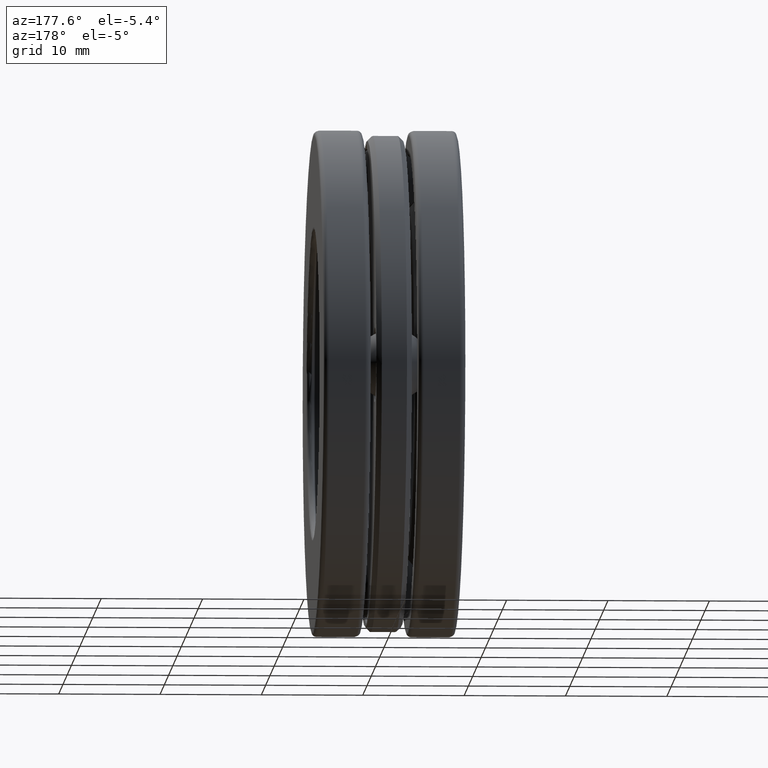
[diagram: clean part render]
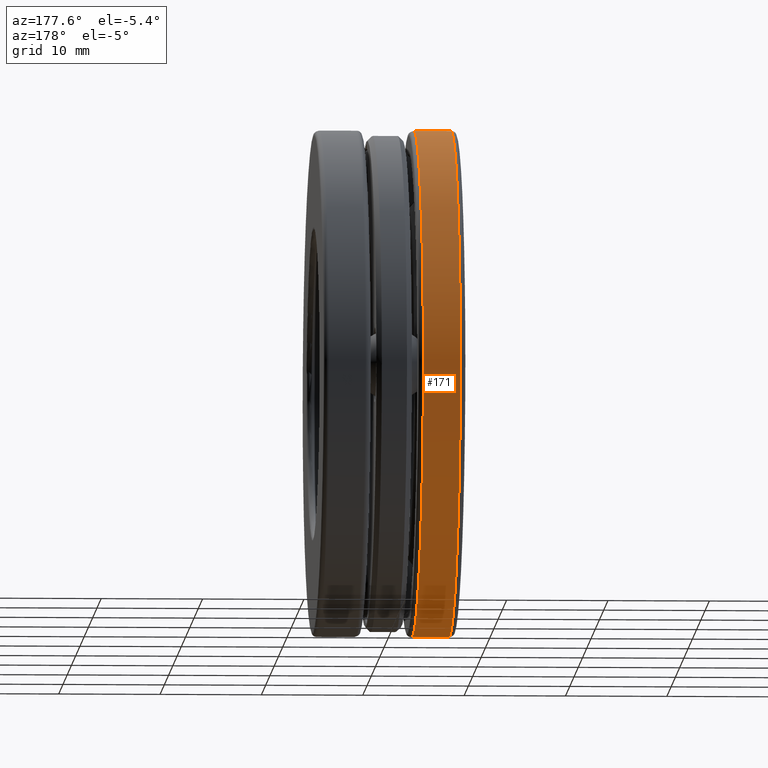
[diagram: same view with one face highlighted and labeled with its STEP entity id]
A machine part, auxiliary view. The second image highlights one B-rep face of the part: STEP entity #171.
In plain terms, the highlighted cylindrical surface (bore or boss wall) has radius 25.0063 mm, axis along (-1, -0, -0).
Its self-contained STEP definition (entity closure, byte-faithful):
#7 = FACE_OUTER_BOUND ( 'NONE', #177, .T. ) ;
#12 = DIRECTION ( 'NONE',  ( 0.0000000000000000000, 0.0000000000000000000, 1.000000000000000000 ) ) ;
#64 = CARTESIAN_POINT ( 'NONE',  ( -0.2555000000000000600, 0.0000000000000000000, 0.9845000000000001500 ) ) ;
#68 = VERTEX_POINT ( 'NONE', #816 ) ;
#124 = FACE_OUTER_BOUND ( 'NONE', #185, .T. ) ;
#171 = ADVANCED_FACE ( 'NONE', ( #7, #124 ), #690, .T. ) ;
#177 = EDGE_LOOP ( 'NONE', ( #769 ) ) ;
#178 = AXIS2_PLACEMENT_3D ( 'NONE', #350, #449, #243 ) ;
#185 = EDGE_LOOP ( 'NONE', ( #583 ) ) ;
#197 = AXIS2_PLACEMENT_3D ( 'NONE', #774, #413, #12 ) ;
#210 = AXIS2_PLACEMENT_3D ( 'NONE', #287, #775, #359 ) ;
#243 = DIRECTION ( 'NONE',  ( 0.0000000000000000000, 0.0000000000000000000, 1.000000000000000000 ) ) ;
#287 = CARTESIAN_POINT ( 'NONE',  ( -0.1118351699999999700, 0.0000000000000000000, 0.0000000000000000000 ) ) ;
#332 = VERTEX_POINT ( 'NONE', #64 ) ;
#350 = CARTESIAN_POINT ( 'NONE',  ( 0.0000000000000000000, 0.0000000000000000000, 0.0000000000000000000 ) ) ;
#359 = DIRECTION ( 'NONE',  ( 0.0000000000000000000, 0.0000000000000000000, 1.000000000000000000 ) ) ;
#407 = EDGE_CURVE ( 'NONE', #332, #332, #713, .T. ) ;
#413 = DIRECTION ( 'NONE',  ( -1.000000000000000000, -0.0000000000000000000, -0.0000000000000000000 ) ) ;
#449 = DIRECTION ( 'NONE',  ( -1.000000000000000000, -0.0000000000000000000, -0.0000000000000000000 ) ) ;
#491 = EDGE_CURVE ( 'NONE', #68, #68, #545, .T. ) ;
#545 = CIRCLE ( 'NONE', #210, 0.9845000000000001500 ) ;
#583 = ORIENTED_EDGE ( 'NONE', *, *, #491, .T. ) ;
#690 = CYLINDRICAL_SURFACE ( 'NONE', #178, 0.9845000000000001500 ) ;
#713 = CIRCLE ( 'NONE', #197, 0.9845000000000001500 ) ;
#769 = ORIENTED_EDGE ( 'NONE', *, *, #407, .F. ) ;
#774 = CARTESIAN_POINT ( 'NONE',  ( -0.2555000000000000600, 0.0000000000000000000, 0.0000000000000000000 ) ) ;
#775 = DIRECTION ( 'NONE',  ( -1.000000000000000000, -0.0000000000000000000, -0.0000000000000000000 ) ) ;
#816 = CARTESIAN_POINT ( 'NONE',  ( -0.1118351699999999700, 0.0000000000000000000, 0.9845000000000001500 ) ) ;